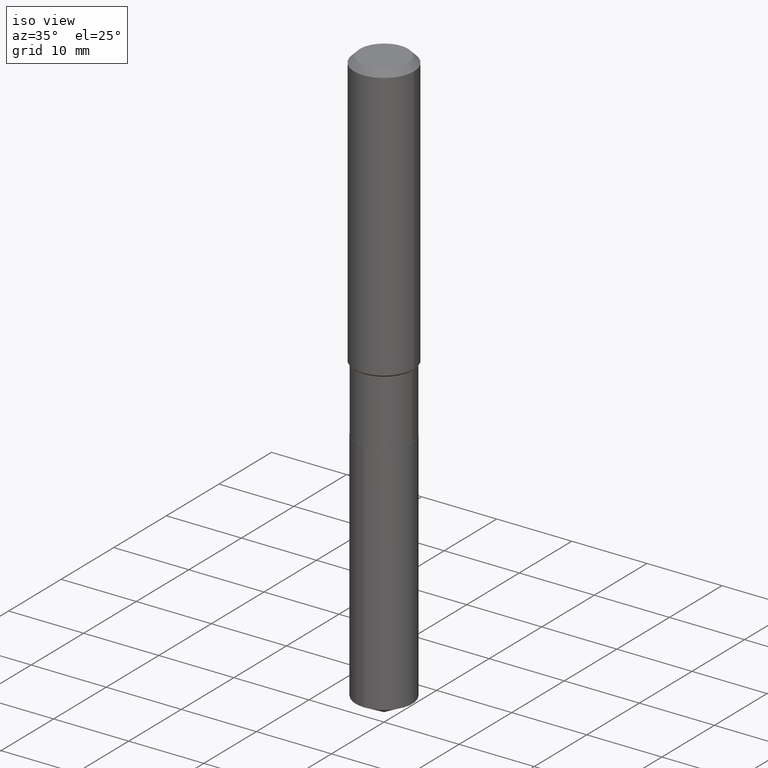
[diagram: clean part render]
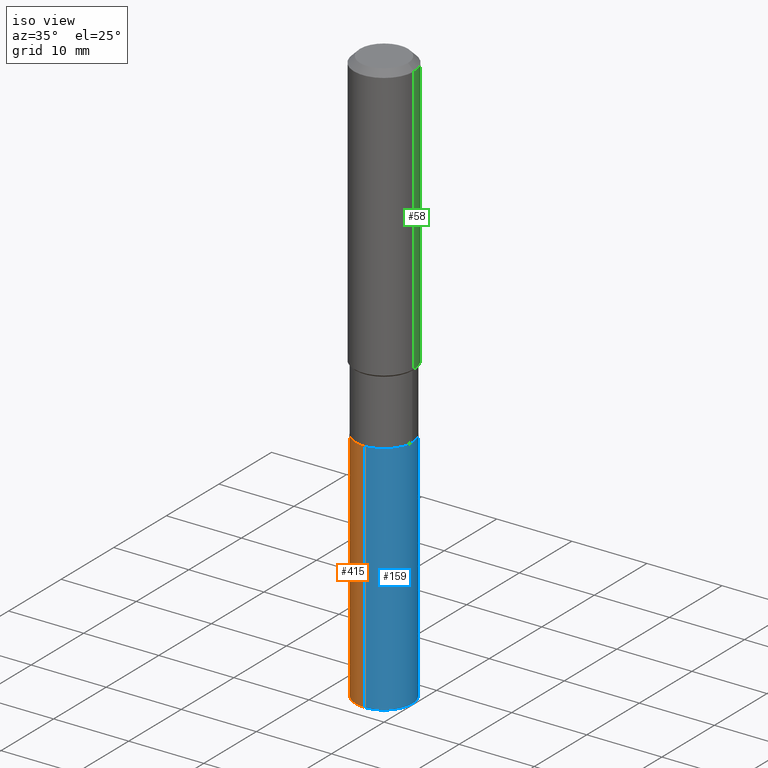
[diagram: same view with three faces highlighted in distinct colors, each labeled with its STEP entity id]
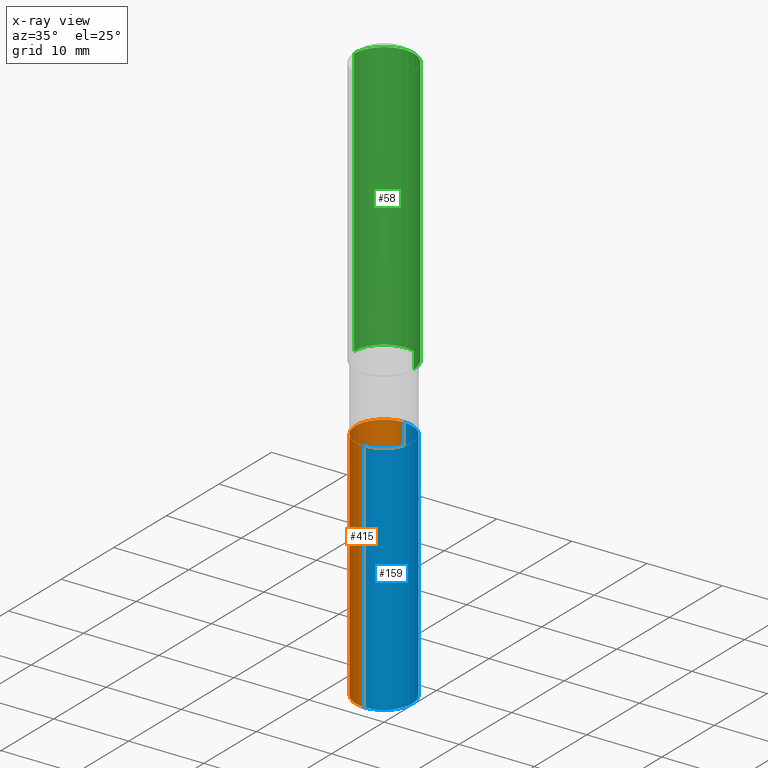
[diagram: x-ray of the same camera — body ghosted, the three highlighted faces saturated]
A machine part, iso view with three faces highlighted in distinct colors.
The next image is the same camera in x-ray (body ghosted, the three faces saturated) — at least one of them is partly hidden behind the body in this view.
Their STEP definitions:

[orange] entity #415 — the highlighted cylindrical surface (edge-blend (fillet) strip) has radius 3.7706 mm, axis along (-0, 0, 1).
#3 = VECTOR ( 'NONE', #425, 39.37007874015748143 ) ;
#30 = LINE ( 'NONE', #172, #47 ) ;
#47 = VECTOR ( 'NONE', #484, 39.37007874015748143 ) ;
#61 = VERTEX_POINT ( 'NONE', #360 ) ;
#68 = CARTESIAN_POINT ( 'NONE',  ( 4.383991928848093439E-29, -6.259178596144105809E-15, -1.792699999999999738 ) ) ;
#80 = CARTESIAN_POINT ( 'NONE',  ( 1.054800691235912301E-15, 0.1484499999999937259, -1.792700000000000182 ) ) ;
#102 = DIRECTION ( 'NONE',  ( -6.982962677686265133E-15, -1.000000000000000000, 3.680495781292372402E-15 ) ) ;
#120 = LINE ( 'NONE', #80, #3 ) ;
#137 = CARTESIAN_POINT ( 'NONE',  ( 7.412648154614789449E-29, -1.058253470461137512E-14, -3.031067734869853592 ) ) ;
#160 = EDGE_CURVE ( 'NONE', #200, #61, #30, .T. ) ;
#172 = CARTESIAN_POINT ( 'NONE',  ( -1.036620809502482311E-15, -0.1484500000000062436, -1.792699999999999072 ) ) ;
#188 = CARTESIAN_POINT ( 'NONE',  ( -1.036620809502451743E-15, -0.1484500000000105457, -3.031067734869853147 ) ) ;
#200 = VERTEX_POINT ( 'NONE', #188 ) ;
#201 = CIRCLE ( 'NONE', #280, 0.1484499999999999986 ) ;
#222 = EDGE_CURVE ( 'NONE', #423, #254, #120, .T. ) ;
#226 = DIRECTION ( 'NONE',  ( -6.982962677686265133E-15, -1.000000000000000000, 3.680495781292372402E-15 ) ) ;
#230 = AXIS2_PLACEMENT_3D ( 'NONE', #137, #445, #226 ) ;
#253 = CYLINDRICAL_SURFACE ( 'NONE', #271, 0.1484499999999999986 ) ;
#254 = VERTEX_POINT ( 'NONE', #386 ) ;
#263 = DIRECTION ( 'NONE',  ( -2.445684056913023597E-29, 3.491173087549500750E-15, 1.000000000000000000 ) ) ;
#267 = EDGE_LOOP ( 'NONE', ( #430, #269, #302, #354 ) ) ;
#269 = ORIENTED_EDGE ( 'NONE', *, *, #363, .T. ) ;
#271 = AXIS2_PLACEMENT_3D ( 'NONE', #337, #263, #405 ) ;
#280 = AXIS2_PLACEMENT_3D ( 'NONE', #68, #380, #102 ) ;
#301 = FACE_OUTER_BOUND ( 'NONE', #267, .T. ) ;
#302 = ORIENTED_EDGE ( 'NONE', *, *, #160, .T. ) ;
#337 = CARTESIAN_POINT ( 'NONE',  ( 4.383991928848093439E-29, -6.259178596144105809E-15, -1.792699999999999738 ) ) ;
#354 = ORIENTED_EDGE ( 'NONE', *, *, #489, .F. ) ;
#360 = CARTESIAN_POINT ( 'NONE',  ( -1.036620809502482311E-15, -0.1484500000000062436, -1.792699999999999072 ) ) ;
#363 = EDGE_CURVE ( 'NONE', #423, #200, #378, .T. ) ;
#378 = CIRCLE ( 'NONE', #230, 0.1484499999999999986 ) ;
#380 = DIRECTION ( 'NONE',  ( -2.445684056913023597E-29, 3.491173087549500750E-15, 1.000000000000000000 ) ) ;
#382 = CARTESIAN_POINT ( 'NONE',  ( 1.054800691235942475E-15, 0.1484499999999893960, -3.031067734869854480 ) ) ;
#386 = CARTESIAN_POINT ( 'NONE',  ( 1.054800691235942869E-15, 0.1484499999999937259, -1.792700000000000182 ) ) ;
#405 = DIRECTION ( 'NONE',  ( -6.982962677686265133E-15, -1.000000000000000000, 3.680495781292372402E-15 ) ) ;
#415 = ADVANCED_FACE ( 'NONE', ( #301 ), #253, .T. ) ;
#423 = VERTEX_POINT ( 'NONE', #382 ) ;
#425 = DIRECTION ( 'NONE',  ( -2.445684056913023317E-29, 3.491173087549500750E-15, 1.000000000000000000 ) ) ;
#430 = ORIENTED_EDGE ( 'NONE', *, *, #222, .F. ) ;
#445 = DIRECTION ( 'NONE',  ( -2.445684056913023597E-29, 3.491173087549500750E-15, 1.000000000000000000 ) ) ;
#484 = DIRECTION ( 'NONE',  ( -2.445684056913023317E-29, 3.491173087549500750E-15, 1.000000000000000000 ) ) ;
#489 = EDGE_CURVE ( 'NONE', #254, #61, #201, .T. ) ;

[blue] entity #159 — the highlighted cylindrical surface (edge-blend (fillet) strip) has radius 3.7706 mm, axis along (-0, 0, 1).
#3 = VECTOR ( 'NONE', #425, 39.37007874015748143 ) ;
#6 = DIRECTION ( 'NONE',  ( -6.982962677686265133E-15, -1.000000000000000000, 3.680495781292372402E-15 ) ) ;
#21 = CIRCLE ( 'NONE', #368, 0.1484499999999999986 ) ;
#30 = LINE ( 'NONE', #172, #47 ) ;
#31 = AXIS2_PLACEMENT_3D ( 'NONE', #96, #262, #252 ) ;
#36 = DIRECTION ( 'NONE',  ( -6.982962677686265133E-15, -1.000000000000000000, 3.680495781292372402E-15 ) ) ;
#47 = VECTOR ( 'NONE', #484, 39.37007874015748143 ) ;
#61 = VERTEX_POINT ( 'NONE', #360 ) ;
#72 = DIRECTION ( 'NONE',  ( -2.445684056913023597E-29, 3.491173087549500750E-15, 1.000000000000000000 ) ) ;
#76 = EDGE_LOOP ( 'NONE', ( #107, #434, #233, #311 ) ) ;
#80 = CARTESIAN_POINT ( 'NONE',  ( 1.054800691235912301E-15, 0.1484499999999937259, -1.792700000000000182 ) ) ;
#96 = CARTESIAN_POINT ( 'NONE',  ( 4.383991928848093439E-29, -6.259178596144105809E-15, -1.792699999999999738 ) ) ;
#107 = ORIENTED_EDGE ( 'NONE', *, *, #298, .T. ) ;
#120 = LINE ( 'NONE', #80, #3 ) ;
#156 = AXIS2_PLACEMENT_3D ( 'NONE', #228, #384, #6 ) ;
#159 = ADVANCED_FACE ( 'NONE', ( #372 ), #447, .T. ) ;
#160 = EDGE_CURVE ( 'NONE', #200, #61, #30, .T. ) ;
#172 = CARTESIAN_POINT ( 'NONE',  ( -1.036620809502482311E-15, -0.1484500000000062436, -1.792699999999999072 ) ) ;
#188 = CARTESIAN_POINT ( 'NONE',  ( -1.036620809502451743E-15, -0.1484500000000105457, -3.031067734869853147 ) ) ;
#200 = VERTEX_POINT ( 'NONE', #188 ) ;
#222 = EDGE_CURVE ( 'NONE', #423, #254, #120, .T. ) ;
#228 = CARTESIAN_POINT ( 'NONE',  ( 7.412648154614789449E-29, -1.058253470461137512E-14, -3.031067734869853592 ) ) ;
#233 = ORIENTED_EDGE ( 'NONE', *, *, #364, .F. ) ;
#252 = DIRECTION ( 'NONE',  ( -6.982962677686265133E-15, -1.000000000000000000, 3.680495781292372402E-15 ) ) ;
#254 = VERTEX_POINT ( 'NONE', #386 ) ;
#262 = DIRECTION ( 'NONE',  ( -2.445684056913023597E-29, 3.491173087549500750E-15, 1.000000000000000000 ) ) ;
#298 = EDGE_CURVE ( 'NONE', #200, #423, #328, .T. ) ;
#311 = ORIENTED_EDGE ( 'NONE', *, *, #160, .F. ) ;
#328 = CIRCLE ( 'NONE', #156, 0.1484499999999999986 ) ;
#360 = CARTESIAN_POINT ( 'NONE',  ( -1.036620809502482311E-15, -0.1484500000000062436, -1.792699999999999072 ) ) ;
#364 = EDGE_CURVE ( 'NONE', #61, #254, #21, .T. ) ;
#368 = AXIS2_PLACEMENT_3D ( 'NONE', #381, #72, #36 ) ;
#372 = FACE_OUTER_BOUND ( 'NONE', #76, .T. ) ;
#381 = CARTESIAN_POINT ( 'NONE',  ( 4.383991928848093439E-29, -6.259178596144105809E-15, -1.792699999999999738 ) ) ;
#382 = CARTESIAN_POINT ( 'NONE',  ( 1.054800691235942475E-15, 0.1484499999999893960, -3.031067734869854480 ) ) ;
#384 = DIRECTION ( 'NONE',  ( -2.445684056913023597E-29, 3.491173087549500750E-15, 1.000000000000000000 ) ) ;
#386 = CARTESIAN_POINT ( 'NONE',  ( 1.054800691235942869E-15, 0.1484499999999937259, -1.792700000000000182 ) ) ;
#423 = VERTEX_POINT ( 'NONE', #382 ) ;
#425 = DIRECTION ( 'NONE',  ( -2.445684056913023317E-29, 3.491173087549500750E-15, 1.000000000000000000 ) ) ;
#434 = ORIENTED_EDGE ( 'NONE', *, *, #222, .T. ) ;
#447 = CYLINDRICAL_SURFACE ( 'NONE', #31, 0.1484499999999999986 ) ;
#484 = DIRECTION ( 'NONE',  ( -2.445684056913023317E-29, 3.491173087549500750E-15, 1.000000000000000000 ) ) ;

[green] entity #58 — the highlighted cylindrical surface (partial cylindrical patch) has radius 4.0005 mm, axis along (-0, 0, 1).
#8 = VERTEX_POINT ( 'NONE', #126 ) ;
#32 = EDGE_CURVE ( 'NONE', #470, #151, #477, .T. ) ;
#38 = CARTESIAN_POINT ( 'NONE',  ( 7.703226739483228723E-31, -1.099816621735597661E-16, -0.03150000000000019451 ) ) ;
#53 = DIRECTION ( 'NONE',  ( -2.445468806185136597E-29, 3.491481338843145583E-15, 1.000000000000000000 ) ) ;
#58 = ADVANCED_FACE ( 'NONE', ( #86 ), #473, .T. ) ;
#70 = CARTESIAN_POINT ( 'NONE',  ( 0.1575000000000001676, -6.135405582682112923E-15, -1.442249999999999588 ) ) ;
#83 = VECTOR ( 'NONE', #341, 39.37007874015748143 ) ;
#86 = FACE_OUTER_BOUND ( 'NONE', #145, .T. ) ;
#94 = VECTOR ( 'NONE', #466, 39.37007874015748143 ) ;
#126 = CARTESIAN_POINT ( 'NONE',  ( -0.1575000000000000011, -1.453680502737883861E-15, -0.03150000000000019451 ) ) ;
#128 = CIRCLE ( 'NONE', #165, 0.1575000000000000011 ) ;
#130 = DIRECTION ( 'NONE',  ( 1.000000000000000000, -6.982962677686267499E-15, 0.000000000000000000 ) ) ;
#143 = ORIENTED_EDGE ( 'NONE', *, *, #488, .F. ) ;
#145 = EDGE_LOOP ( 'NONE', ( #347, #239, #143, #190 ) ) ;
#150 = CARTESIAN_POINT ( 'NONE',  ( 0.1575000000000000011, -1.209798283909146741E-15, -0.03150000000000019451 ) ) ;
#151 = VERTEX_POINT ( 'NONE', #304 ) ;
#155 = AXIS2_PLACEMENT_3D ( 'NONE', #244, #53, #207 ) ;
#162 = DIRECTION ( 'NONE',  ( -2.445468806185136597E-29, 3.491481338843145583E-15, 1.000000000000000000 ) ) ;
#165 = AXIS2_PLACEMENT_3D ( 'NONE', #38, #292, #410 ) ;
#190 = ORIENTED_EDGE ( 'NONE', *, *, #245, .F. ) ;
#202 = CARTESIAN_POINT ( 'NONE',  ( 0.1575000000000000844, -1.099816621735587677E-15, 7.679978421878603638E-30 ) ) ;
#207 = DIRECTION ( 'NONE',  ( 1.000000000000000000, -6.982962677686267499E-15, 4.876176775795936353E-29 ) ) ;
#223 = LINE ( 'NONE', #266, #83 ) ;
#239 = ORIENTED_EDGE ( 'NONE', *, *, #446, .T. ) ;
#244 = CARTESIAN_POINT ( 'NONE',  ( 0.000000000000000000, 0.000000000000000000, 0.000000000000000000 ) ) ;
#245 = EDGE_CURVE ( 'NONE', #470, #279, #274, .T. ) ;
#266 = CARTESIAN_POINT ( 'NONE',  ( -0.1575000000000000844, 1.119104808822158392E-15, -7.747322767151481189E-30 ) ) ;
#274 = LINE ( 'NONE', #202, #94 ) ;
#279 = VERTEX_POINT ( 'NONE', #150 ) ;
#292 = DIRECTION ( 'NONE',  ( -2.445468806185136597E-29, 3.491481338843145583E-15, 1.000000000000000000 ) ) ;
#304 = CARTESIAN_POINT ( 'NONE',  ( -0.1575000000000001676, -3.916484152124366261E-15, -1.442249999999999588 ) ) ;
#341 = DIRECTION ( 'NONE',  ( -2.445468806185136877E-29, 3.491481338843145188E-15, 1.000000000000000000 ) ) ;
#347 = ORIENTED_EDGE ( 'NONE', *, *, #32, .T. ) ;
#361 = CARTESIAN_POINT ( 'NONE',  ( 3.526977385720512669E-29, -5.035588960946525443E-15, -1.442249999999999588 ) ) ;
#410 = DIRECTION ( 'NONE',  ( 1.000000000000000000, -6.982962677686265922E-15, 0.000000000000000000 ) ) ;
#435 = AXIS2_PLACEMENT_3D ( 'NONE', #361, #162, #130 ) ;
#446 = EDGE_CURVE ( 'NONE', #151, #8, #223, .T. ) ;
#466 = DIRECTION ( 'NONE',  ( -2.445468806185136877E-29, 3.491481338843145188E-15, 1.000000000000000000 ) ) ;
#470 = VERTEX_POINT ( 'NONE', #70 ) ;
#473 = CYLINDRICAL_SURFACE ( 'NONE', #155, 0.1575000000000000844 ) ;
#477 = CIRCLE ( 'NONE', #435, 0.1575000000000001676 ) ;
#488 = EDGE_CURVE ( 'NONE', #279, #8, #128, .T. ) ;